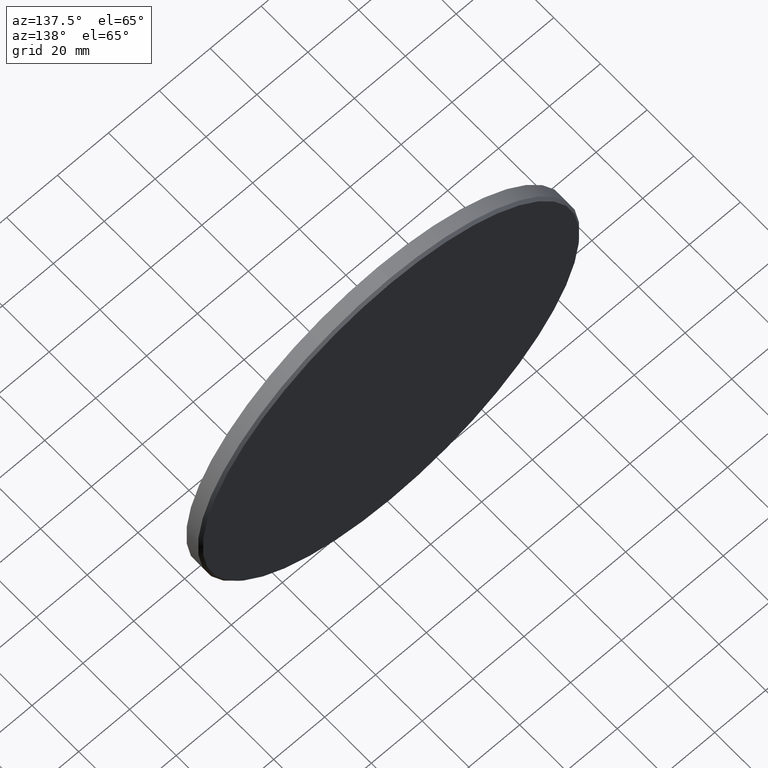
[diagram: clean part render]
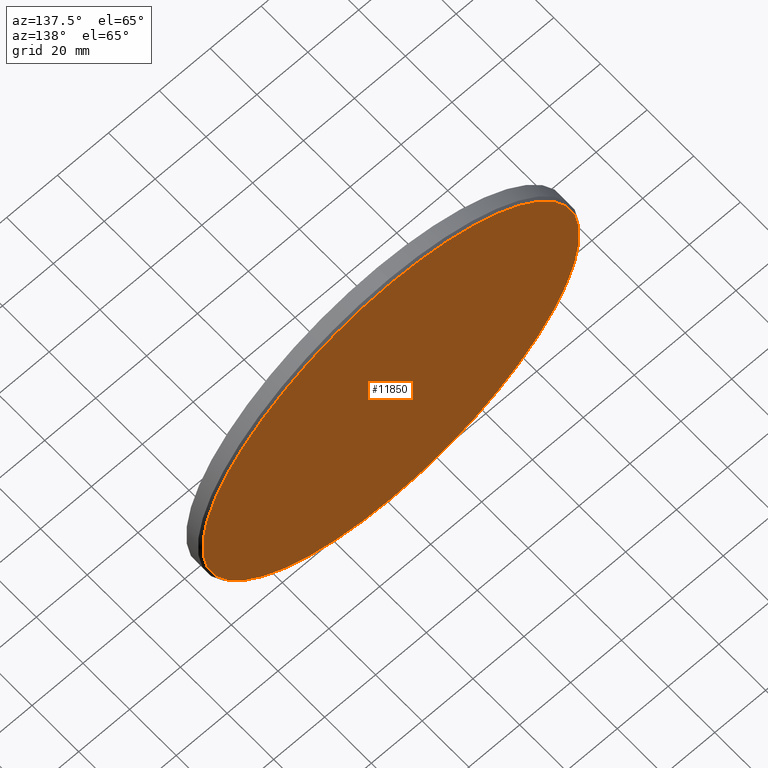
[diagram: same view with one face highlighted and labeled with its STEP entity id]
A machine part, auxiliary view. The second image highlights one B-rep face of the part: STEP entity #11850.
In plain terms, the highlighted planar face has unit normal (0, 1, 0).
Its self-contained STEP definition (entity closure, byte-faithful):
#564 = CARTESIAN_POINT ( 'NONE',  ( 9.123618653647782737E-15, 3.000000000000000000, 74.00000000000001421 ) ) ;
#678 = CARTESIAN_POINT ( 'NONE',  ( 0.000000000000000000, 3.000000000000000000, 0.000000000000000000 ) ) ;
#2011 = EDGE_LOOP ( 'NONE', ( #2671, #6509 ) ) ;
#2613 = CARTESIAN_POINT ( 'NONE',  ( 0.000000000000000000, 3.000000000000000000, 0.000000000000000000 ) ) ;
#2654 = DIRECTION ( 'NONE',  ( 0.000000000000000000, -0.000000000000000000, 1.000000000000000000 ) ) ;
#2671 = ORIENTED_EDGE ( 'NONE', *, *, #5689, .T. ) ;
#3578 = DIRECTION ( 'NONE',  ( 0.000000000000000000, 1.000000000000000000, 0.000000000000000000 ) ) ;
#4997 = AXIS2_PLACEMENT_3D ( 'NONE', #678, #12770, #6133 ) ;
#5152 = FACE_OUTER_BOUND ( 'NONE', #2011, .T. ) ;
#5622 = CARTESIAN_POINT ( 'NONE',  ( 0.000000000000000000, 3.000000000000000000, 0.000000000000000000 ) ) ;
#5689 = EDGE_CURVE ( 'NONE', #13223, #9570, #11408, .T. ) ;
#6133 = DIRECTION ( 'NONE',  ( 0.000000000000000000, 0.000000000000000000, 1.000000000000000000 ) ) ;
#6509 = ORIENTED_EDGE ( 'NONE', *, *, #14315, .T. ) ;
#7218 = PLANE ( 'NONE',  #10956 ) ;
#9088 = DIRECTION ( 'NONE',  ( 0.000000000000000000, 0.000000000000000000, 1.000000000000000000 ) ) ;
#9172 = AXIS2_PLACEMENT_3D ( 'NONE', #5622, #3578, #9088 ) ;
#9570 = VERTEX_POINT ( 'NONE', #564 ) ;
#10323 = DIRECTION ( 'NONE',  ( 0.000000000000000000, 1.000000000000000000, 0.000000000000000000 ) ) ;
#10956 = AXIS2_PLACEMENT_3D ( 'NONE', #2613, #10323, #2654 ) ;
#11408 = CIRCLE ( 'NONE', #4997, 74.00000000000001421 ) ;
#11409 = CARTESIAN_POINT ( 'NONE',  ( 0.000000000000000000, 3.000000000000000000, -74.00000000000001421 ) ) ;
#11850 = ADVANCED_FACE ( 'NONE', ( #5152 ), #7218, .T. ) ;
#12770 = DIRECTION ( 'NONE',  ( 0.000000000000000000, 1.000000000000000000, 0.000000000000000000 ) ) ;
#13223 = VERTEX_POINT ( 'NONE', #11409 ) ;
#14283 = CIRCLE ( 'NONE', #9172, 74.00000000000001421 ) ;
#14315 = EDGE_CURVE ( 'NONE', #9570, #13223, #14283, .T. ) ;